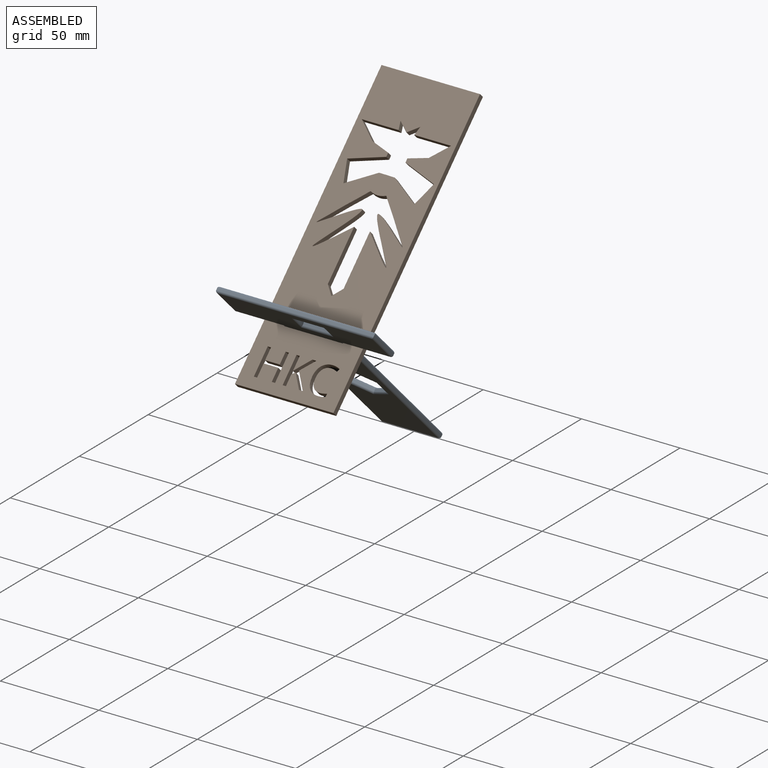
[diagram: assembled view]
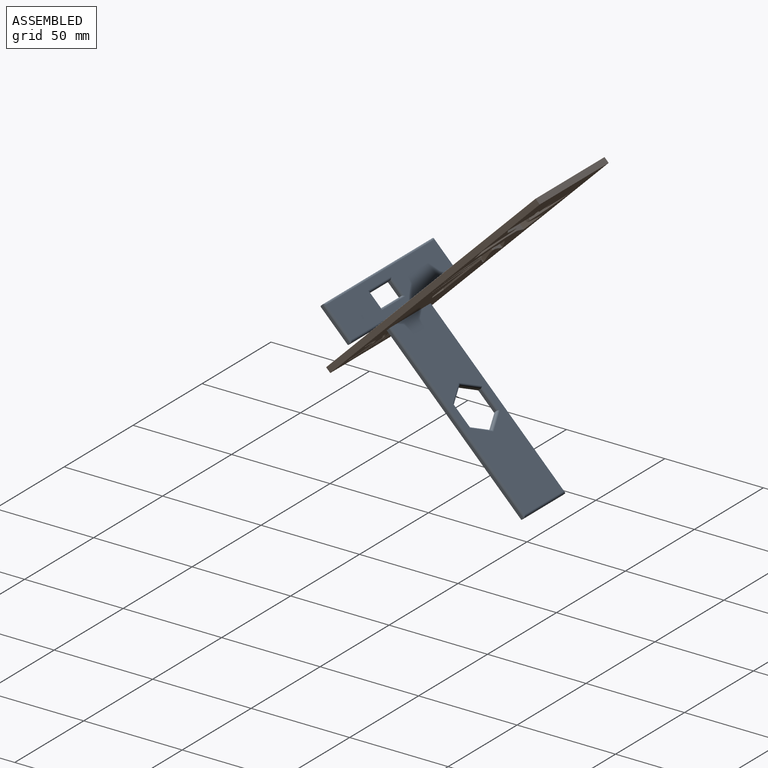
[diagram: assembled view, second angle]
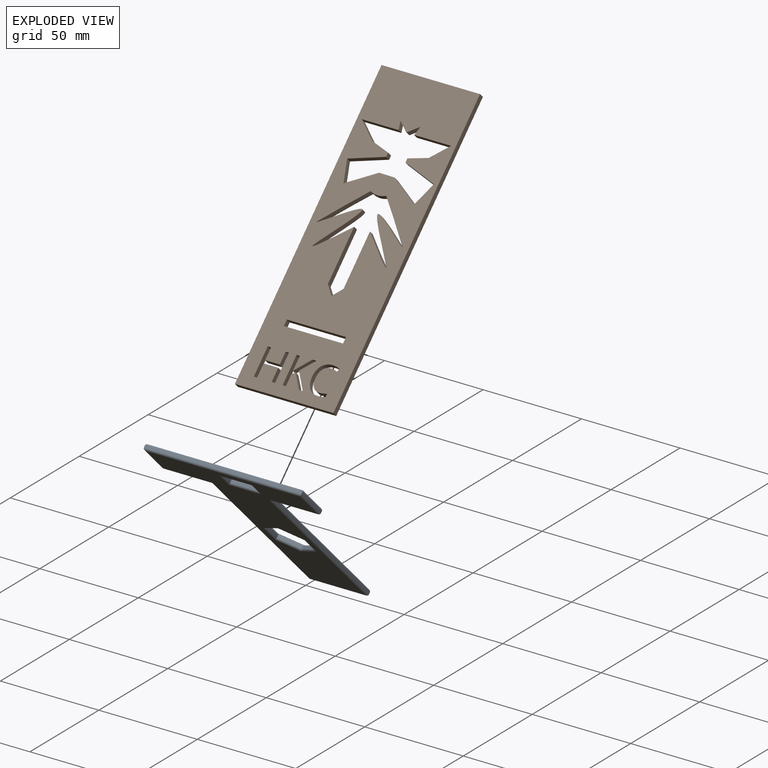
[diagram: exploded view]
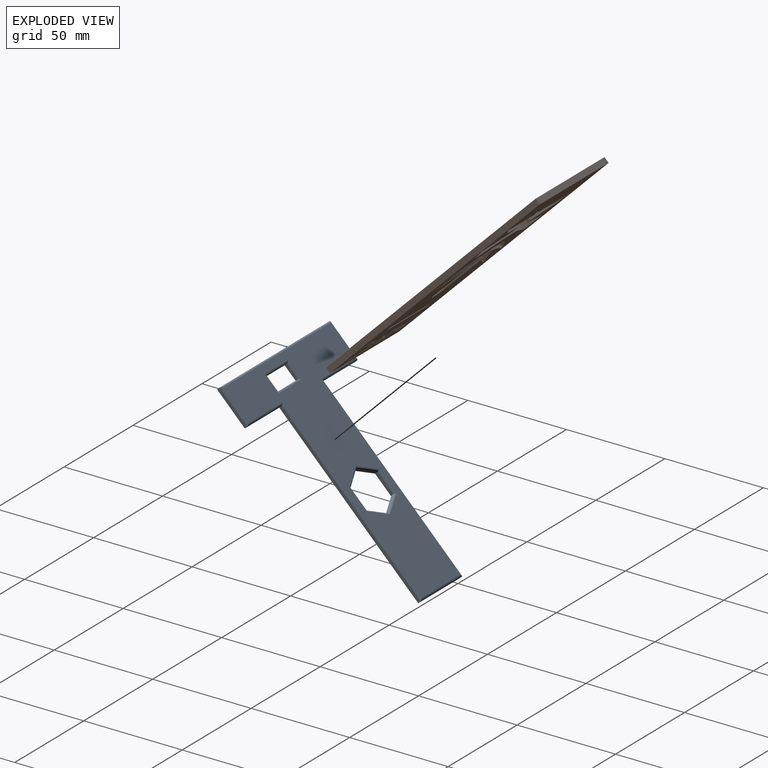
[diagram: exploded view, second angle]
ASSEMBLY  parts=2 mates=5
PART A: 56 faces, bbox 80x120x3 mm
  f0: plane 9.83x5.67mm, normal (0.5,-0.87,0), area 11.3mm2, adj f1,f17,f22,f40
  f1: plane 9.83x5.67mm, normal (-0.5,-0.87,0), area 11.3mm2, adj f0,f2,f20,f38
  f2: plane 11.35x1mm, normal (-1,0,0), area 11.3mm2, adj f1,f3,f21,f39
  f3: plane 9.83x5.67mm, normal (-0.5,0.87,0), area 11.3mm2, adj f2,f4,f23,f41
  f4: plane 9.83x5.67mm, normal (0.5,0.87,0), area 11.3mm2, adj f3,f17,f25,f43
  f5: plane 8x1mm, normal (1,0,0), area 8mm2, adj f6,f15,f27,f45
  f6: plane 15x1mm, normal (0,-1,0), area 15mm2, adj f5,f7,f26,f44
  f7: plane 8x1mm, normal (-1,0,0), area 8mm2, adj f6,f15,f28,f46
  f8: plane 100x1mm, normal (-1,0,0), area 100mm2, adj f9,f16,f35,f53
  f9: plane 25x1mm, normal (0,1,0), area 25mm2, adj f8,f10,f33,f51
  f10: plane 20x1mm, normal (-1,0,0), area 20mm2, adj f9,f11,f31,f49
  f11: plane 80x1mm, normal (0,-1,0), area 80mm2, adj f10,f12,f30,f48
  f12: plane 20x1mm, normal (1,0,0), area 20mm2, adj f11,f13,f32,f50
  f13: plane 25x1mm, normal (0,1,0), area 25mm2, adj f12,f14,f34,f52
  f14: plane 100x1mm, normal (1,0,0), area 100mm2, adj f13,f16,f36,f54
  f15: plane 15x1mm, normal (0,1,0), area 15mm2, adj f5,f7,f29,f47
  f16: plane 30x1mm, normal (0,1,0), area 30mm2, adj f8,f14,f37,f55
  f17: plane 11.35x1mm, normal (1,0,0), area 11.3mm2, adj f0,f4,f24,f42
  f18: plane 118x78mm, normal (0,0,1), area 3628mm2, adj f38,f39,f40,f41,f42,f43,f44,f45
  f19: plane 118x78mm, normal (0,0,-1), area 3628mm2, adj f20,f21,f22,f23,f24,f25,f26,f27
  f20: cylinder r=1mm len=11.33mm, axis (0.87,-0.5,0), area 18.5mm2, adj f1,f19,f21,f22
  f21: cylinder r=1mm len=12.5mm, axis (0,-1,0), area 18.5mm2, adj f2,f19,f20,f23
  f22: cylinder r=1mm len=11.33mm, axis (0.87,0.5,0), area 18.5mm2, adj f0,f19,f20,f24
  f23: cylinder r=1mm len=11.33mm, axis (-0.87,-0.5,0), area 18.5mm2, adj f3,f19,f21,f25
  f24: cylinder r=1mm len=12.5mm, axis (0,1,0), area 18.5mm2, adj f17,f19,f22,f25
  f25: cylinder r=1mm len=11.33mm, axis (-0.87,0.5,0), area 18.5mm2, adj f4,f19,f23,f24
  f26: cylinder r=1mm len=17mm, axis (1,0,0), area 24.7mm2, adj f6,f19,f27,f28
  f27: cylinder r=1mm len=10mm, axis (0,1,0), area 13.7mm2, adj f5,f19,f26,f29
  f28: cylinder r=1mm len=10mm, axis (0,-1,0), area 13.7mm2, adj f7,f19,f26,f29
  f29: cylinder r=1mm len=17mm, axis (-1,0,0), area 24.7mm2, adj f15,f19,f27,f28
  f30: cylinder r=1mm len=80mm, axis (1,0,0), area 124.5mm2, adj f11,f19,f31,f32
  f31: cylinder r=1mm len=20mm, axis (0,-1,0), area 30.3mm2, adj f10,f19,f30,f33
  f32: cylinder r=1mm len=20mm, axis (0,1,0), area 30.3mm2, adj f12,f19,f30,f34
  f33: cylinder r=1mm len=26mm, axis (-1,0,0), area 39.3mm2, adj f9,f19,f31,f35
  f34: cylinder r=1mm len=26mm, axis (-1,0,0), area 39.3mm2, adj f13,f19,f32,f36
  f35: cylinder r=1mm len=101mm, axis (0,-1,0), area 157.1mm2, adj f8,f19,f33,f37
  f36: cylinder r=1mm len=101mm, axis (0,1,0), area 157.1mm2, adj f14,f19,f34,f37
  f37: cylinder r=1mm len=30mm, axis (-1,0,0), area 46mm2, adj f16,f19,f35,f36
  f38: cylinder r=1mm len=11.33mm, axis (-0.87,0.5,0), area 18.5mm2, adj f1,f18,f39,f40
  f39: cylinder r=1mm len=12.5mm, axis (0,1,0), area 18.5mm2, adj f2,f18,f38,f41
  f40: cylinder r=1mm len=11.33mm, axis (-0.87,-0.5,0), area 18.5mm2, adj f0,f18,f38,f42
  f41: cylinder r=1mm len=11.33mm, axis (0.87,0.5,0), area 18.5mm2, adj f3,f18,f39,f43
  f42: cylinder r=1mm len=12.5mm, axis (0,-1,0), area 18.5mm2, adj f17,f18,f40,f43
  f43: cylinder r=1mm len=11.33mm, axis (0.87,-0.5,0), area 18.5mm2, adj f4,f18,f41,f42
  f44: cylinder r=1mm len=17mm, axis (-1,0,0), area 24.7mm2, adj f6,f18,f45,f46
  f45: cylinder r=1mm len=10mm, axis (0,-1,0), area 13.7mm2, adj f5,f18,f44,f47
  f46: cylinder r=1mm len=10mm, axis (0,1,0), area 13.7mm2, adj f7,f18,f44,f47
  f47: cylinder r=1mm len=17mm, axis (1,0,0), area 24.7mm2, adj f15,f18,f45,f46
  f48: cylinder r=1mm len=80mm, axis (-1,0,0), area 124.5mm2, adj f11,f18,f49,f50
  f49: cylinder r=1mm len=20mm, axis (0,1,0), area 30.3mm2, adj f10,f18,f48,f51
  f50: cylinder r=1mm len=20mm, axis (0,-1,0), area 30.3mm2, adj f12,f18,f48,f52
  f51: cylinder r=1mm len=26mm, axis (1,0,0), area 39.3mm2, adj f9,f18,f49,f53
  f52: cylinder r=1mm len=26mm, axis (1,0,0), area 39.3mm2, adj f13,f18,f50,f54
  f53: cylinder r=1mm len=101mm, axis (0,1,0), area 157.1mm2, adj f8,f18,f51,f55
  f54: cylinder r=1mm len=101mm, axis (0,-1,0), area 157.1mm2, adj f14,f18,f52,f55
  f55: cylinder r=1mm len=30mm, axis (1,0,0), area 46mm2, adj f16,f18,f53,f54
PART B: 150 faces, bbox 50x150x3 mm
  f0: plane 50x2.9mm, normal (0,1,0), area 145mm2, adj f1,f73,f75,f76
  f1: plane 150x2.9mm, normal (-1,0,0), area 435mm2, adj f0,f2,f75,f77
  f2: plane 50x2.9mm, normal (0,-1,0), area 145mm2, adj f1,f73,f75,f79
  f3: plane 3x2.9mm, normal (-1,0,0), area 8.7mm2, adj f4,f67,f75,f81
  f4: plane 30x2.9mm, normal (0,1,0), area 87mm2, adj f3,f5,f75,f80
  f5: plane 3x2.9mm, normal (1,0,0), area 8.7mm2, adj f4,f67,f75,f82
  f6: extruded ~3.22x2.9mm, area 9.7mm2, adj f7,f68,f75,f97
  f7: extruded ~3.68x2.9mm, area 12mm2, adj f6,f8,f75,f95
  f8: extruded ~4.26x2.9mm, area 13.2mm2, adj f7,f9,f75,f93
  f9: extruded ~4.29x2.9mm, area 13.3mm2, adj f8,f10,f75,f91
  f10: extruded ~3.71x2.9mm, area 12mm2, adj f9,f11,f75,f89
  f11: extruded ~3.38x2.9mm, area 10mm2, adj f10,f12,f75,f87
  f12: plane 2.9x1.44mm, normal (-1,0,0), area 4.2mm2, adj f11,f13,f75,f85
  f13: extruded ~3.63x2.9mm, area 10.7mm2, adj f12,f14,f75,f84
  f14: extruded ~4.83x2.9mm, area 15.5mm2, adj f13,f15,f75,f86
  f15: extruded ~5.39x2.9mm, area 16.8mm2, adj f14,f16,f75,f88
  f16: extruded ~3.83x2.9mm, area 11.5mm2, adj f15,f17,f75,f90
  f17: extruded ~2.9x2.54mm, area 10.2mm2, adj f16,f18,f75,f92
  f18: extruded ~3.64x2.9mm, area 11mm2, adj f17,f19,f75,f94
  f19: extruded ~3.89x2.9mm, area 11.6mm2, adj f18,f68,f75,f96
  f20: plane 8.01x5.9mm, normal (-0.8,-0.59,0), area 28.8mm2, adj f21,f69,f75,f109
  f21: plane 2.9x1.94mm, normal (0,1,0), area 5.6mm2, adj f20,f22,f75,f107
  f22: plane 6.87x5.16mm, normal (0.8,0.6,0), area 24.9mm2, adj f21,f23,f75,f105
  f23: plane 2.9x1.48mm, normal (-0.66,0.75,0), area 5.8mm2, adj f22,f24,f75,f103
  f24: plane 5.55x2.9mm, normal (-1,0,0), area 16.1mm2, adj f23,f25,f75,f101
  f25: plane 2.9x1.65mm, normal (0,1,0), area 4.8mm2, adj f24,f26,f75,f99
  f26: plane 14.15x2.9mm, normal (1,0,0), area 41mm2, adj f25,f27,f75,f100
  f27: plane 2.9x1.65mm, normal (0,-1,0), area 4.8mm2, adj f26,f28,f75,f102
  f28: plane 7.02x2.9mm, normal (-1,0,0), area 20.4mm2, adj f27,f29,f75,f104
  f29: plane 7.02x6.42mm, normal (0.74,-0.67,0), area 27.6mm2, adj f28,f30,f75,f106
  f30: plane 2.9x1.95mm, normal (0,-1,0), area 5.6mm2, adj f29,f69,f75,f108
  f31: plane 14.15x2.9mm, normal (-1,0,0), area 41mm2, adj f32,f70,f75,f121
  f32: plane 2.9x1.65mm, normal (0,1,0), area 4.8mm2, adj f31,f33,f75,f119
  f33: plane 6.66x2.9mm, normal (1,0,0), area 19.3mm2, adj f32,f34,f75,f117
  f34: plane 7.46x2.9mm, normal (0,1,0), area 21.6mm2, adj f33,f35,f75,f115
  f35: plane 6.66x2.9mm, normal (-1,0,0), area 19.3mm2, adj f34,f36,f75,f113
  f36: plane 2.9x1.65mm, normal (0,1,0), area 4.8mm2, adj f35,f37,f75,f111
  f37: plane 14.15x2.9mm, normal (1,0,0), area 41mm2, adj f36,f38,f75,f112
  f38: plane 2.9x1.65mm, normal (0,-1,0), area 4.8mm2, adj f37,f39,f75,f114
  f39: plane 6.02x2.9mm, normal (-1,0,0), area 17.5mm2, adj f38,f40,f75,f116
  f40: plane 7.46x2.9mm, normal (0,-1,0), area 21.6mm2, adj f39,f41,f75,f118
  f41: plane 6.02x2.9mm, normal (1,0,0), area 17.5mm2, adj f40,f70,f75,f120
  f42: extruded ~29.78x17.86mm, area 268.8mm2, adj f43,f71,f75,f127
  f43: cylinder r=9.6mm len=8mm, axis (0,0,-1), area 23.9mm2, adj f42,f44,f75,f125
  f44: extruded ~29.78x17.86mm, area 268.8mm2, adj f43,f45,f75,f123
  f45: plane 26.92x2.9mm, normal (-1,0,0), area 78.1mm2, adj f44,f46,f75,f124
  f46: plane 4.49x4mm, normal (-0.75,0.67,0), area 17.4mm2, adj f45,f47,f75,f126
  f47: plane 4.49x4mm, normal (0.75,0.67,0), area 17.4mm2, adj f46,f71,f75,f128
  f48: plane 18.65x2.9mm, normal (0,-1,0), area 54.1mm2, adj f49,f72,f75,f148
  f49: plane 7.71x7.47mm, normal (-0.72,0.7,0), area 31.1mm2, adj f48,f50,f75,f146
  f50: plane 9.46x2.9mm, normal (-0.28,0.96,0), area 28.6mm2, adj f49,f51,f75,f144
  f51: plane 2.9x2mm, normal (-1,0,0), area 5.8mm2, adj f50,f52,f75,f142
  f52: plane 17.14x5.5mm, normal (-0.31,-0.95,0), area 52.2mm2, adj f51,f53,f75,f140
  f53: plane 10.63x4.59mm, normal (-0.92,0.4,0), area 33.6mm2, adj f52,f54,f75,f138
  f54: plane 14.27x8.64mm, normal (0.52,0.86,0), area 48.4mm2, adj f53,f55,f75,f136
  f55: plane 4x2.9mm, normal (0.02,1,0), area 11.6mm2, adj f54,f56,f75,f134
  f56: plane 4x2.9mm, normal (0,1,0), area 11.6mm2, adj f55,f57,f75,f132
  f57: plane 13.73x8.73mm, normal (-0.54,0.84,0), area 47.2mm2, adj f56,f58,f75,f130
  f58: plane 10.64x3.41mm, normal (0.95,0.31,0), area 32.4mm2, adj f57,f59,f75,f131
  f59: plane 17.14x5.5mm, normal (0.31,-0.95,0), area 52.2mm2, adj f58,f60,f75,f133
  f60: plane 2.9x2mm, normal (1,0,0), area 5.8mm2, adj f59,f61,f75,f135
  f61: plane 9.46x2.9mm, normal (0.29,0.96,0), area 28.7mm2, adj f60,f62,f75,f137
  f62: plane 9.19x7.71mm, normal (0.64,0.77,0), area 34.8mm2, adj f61,f63,f75,f139
  f63: plane 18.65x2.9mm, normal (0,-1,0), area 54.1mm2, adj f62,f64,f75,f141
  f64: plane 4.01x2.9mm, normal (0.97,0.24,0), area 12mm2, adj f63,f65,f75,f143
  f65: plane 5x4.01mm, normal (-0.63,-0.78,0), area 18.6mm2, adj f64,f66,f75,f145
  f66: plane 5x3.91mm, normal (0.62,-0.79,0), area 18.4mm2, adj f65,f72,f75,f147
  f67: plane 30x2.9mm, normal (0,-1,0), area 87mm2, adj f3,f5,f75,f83
  f68: plane 2.9x1.41mm, normal (-0.9,0.44,0), area 4.6mm2, adj f6,f19,f75,f98
  f69: plane 6.15x5.69mm, normal (-0.73,0.68,0), area 24.3mm2, adj f20,f30,f75,f110
  f70: plane 2.9x1.65mm, normal (0,-1,0), area 4.8mm2, adj f31,f41,f75,f122
  f71: plane 26.92x2.9mm, normal (1,0,0), area 78.1mm2, adj f42,f47,f75,f129
  f72: plane 4.01x2.9mm, normal (-0.97,0.24,0), area 12mm2, adj f48,f66,f75,f149
  f73: plane 150x2.9mm, normal (1,0,0), area 435mm2, adj f0,f2,f75,f78
  f74: plane 149.8x49.8mm, normal (0,0,1), area 5702.4mm2, adj f76,f77,f78,f79,f80,f81,f82,f83
  f75: plane 150x50mm, normal (0,0,-1), area 5883.1mm2, adj f0,f1,f2,f3,f4,f5,f6,f7
  f76: cylinder r=0.1mm len=50mm, axis (1,0,0), area 7.8mm2, adj f0,f74,f77,f78
  f77: cylinder r=0.1mm len=150mm, axis (0,1,0), area 23.5mm2, adj f1,f74,f76,f79
  f78: cylinder r=0.1mm len=150mm, axis (0,-1,0), area 23.5mm2, adj f73,f74,f76,f79
  f79: cylinder r=0.1mm len=50mm, axis (-1,0,0), area 7.8mm2, adj f2,f74,f77,f78
  f80: cylinder r=0.1mm len=30.2mm, axis (1,0,0), area 4.7mm2, adj f4,f74,f81,f82
  f81: cylinder r=0.1mm len=3.2mm, axis (0,1,0), area 0.5mm2, adj f3,f74,f80,f83
  f82: cylinder r=0.1mm len=3.2mm, axis (0,-1,0), area 0.5mm2, adj f5,f74,f80,f83
  f83: cylinder r=0.1mm len=30.2mm, axis (-1,0,0), area 4.7mm2, adj f67,f74,f81,f82
  f84: bspline ~4.75x0.72mm, area 0.6mm2, adj f13,f74,f85,f86
  f85: cylinder r=0.1mm len=1.64mm, axis (0,1,0), area 0.2mm2, adj f12,f74,f84,f87
  f86: bspline ~7.46x2.72mm, area 0.8mm2, adj f14,f74,f84,f88
  f87: bspline ~4.76x0.78mm, area 0.5mm2, adj f11,f74,f85,f89
  f88: bspline ~7.52x2.59mm, area 0.9mm2, adj f15,f74,f86,f90
  f89: bspline ~4.54x2.13mm, area 0.6mm2, adj f10,f74,f87,f91
  f90: bspline ~5.28x1.25mm, area 0.6mm2, adj f16,f74,f88,f92
  f91: bspline ~5.95x1.99mm, area 0.7mm2, adj f9,f74,f89,f93
  f92: bspline ~3.49x3.27mm, area 0.6mm2, adj f17,f74,f90,f94
  f93: bspline ~5.86x2.03mm, area 0.7mm2, adj f8,f74,f91,f95
  f94: bspline ~5x1.34mm, area 0.6mm2, adj f18,f74,f92,f96
  f95: bspline ~5.59x2.16mm, area 0.6mm2, adj f7,f74,f93,f97
  f96: bspline ~5.11x1.03mm, area 0.6mm2, adj f19,f74,f94,f98
  f97: bspline ~4.8x1.23mm, area 0.5mm2, adj f6,f74,f95,f98
  f98: cylinder r=0.1mm len=1.64mm, axis (0.44,0.9,0), area 0.3mm2, adj f68,f74,f96,f97
  f99: cylinder r=0.1mm len=1.85mm, axis (1,0,0), area 0.3mm2, adj f25,f74,f100,f101
  f100: cylinder r=0.1mm len=14.35mm, axis (0,-1,0), area 2.2mm2, adj f26,f74,f99,f102
  f101: cylinder r=0.1mm len=5.65mm, axis (0,1,0), area 0.9mm2, adj f24,f74,f99,f103
  f102: cylinder r=0.1mm len=1.85mm, axis (-1,0,0), area 0.3mm2, adj f27,f74,f100,f104
  f103: cylinder r=0.1mm len=1.55mm, axis (0.75,0.66,0), area 0.3mm2, adj f23,f74,f101,f105
  f104: cylinder r=0.1mm len=7.12mm, axis (0,1,0), area 1.1mm2, adj f28,f74,f102,f106
  f105: cylinder r=0.1mm len=6.97mm, axis (0.6,-0.8,0), area 1.3mm2, adj f22,f74,f103,f107
  f106: cylinder r=0.1mm len=7.12mm, axis (-0.67,-0.74,0), area 1.5mm2, adj f29,f74,f104,f108
  f107: cylinder r=0.1mm len=2.18mm, axis (1,0,0), area 0.3mm2, adj f21,f74,f105,f109
  f108: cylinder r=0.1mm len=2.22mm, axis (-1,0,0), area 0.3mm2, adj f30,f74,f106,f110
  f109: cylinder r=0.1mm len=8.22mm, axis (-0.59,0.8,0), area 1.6mm2, adj f20,f74,f107,f110
  f110: cylinder r=0.1mm len=6.39mm, axis (0.68,0.73,0), area 1.3mm2, adj f69,f74,f108,f109
  f111: cylinder r=0.1mm len=1.85mm, axis (1,0,0), area 0.3mm2, adj f36,f74,f112,f113
  f112: cylinder r=0.1mm len=14.35mm, axis (0,-1,0), area 2.2mm2, adj f37,f74,f111,f114
  f113: cylinder r=0.1mm len=6.76mm, axis (0,1,0), area 1mm2, adj f35,f74,f111,f115
  f114: cylinder r=0.1mm len=1.85mm, axis (-1,0,0), area 0.3mm2, adj f38,f74,f112,f116
  f115: cylinder r=0.1mm len=7.46mm, axis (1,0,0), area 1.2mm2, adj f34,f74,f113,f117
  f116: cylinder r=0.1mm len=6.12mm, axis (0,1,0), area 0.9mm2, adj f39,f74,f114,f118
  f117: cylinder r=0.1mm len=6.76mm, axis (0,-1,0), area 1mm2, adj f33,f74,f115,f119
  f118: cylinder r=0.1mm len=7.46mm, axis (-1,0,0), area 1.2mm2, adj f40,f74,f116,f120
  f119: cylinder r=0.1mm len=1.85mm, axis (1,0,0), area 0.3mm2, adj f32,f74,f117,f121
  f120: cylinder r=0.1mm len=6.12mm, axis (0,-1,0), area 0.9mm2, adj f41,f74,f118,f122
  f121: cylinder r=0.1mm len=14.35mm, axis (0,1,0), area 2.2mm2, adj f31,f74,f119,f122
  f122: cylinder r=0.1mm len=1.85mm, axis (-1,0,0), area 0.3mm2, adj f70,f74,f120,f121
  f123: bspline ~30.56x21.24mm, area 14.6mm2, adj f44,f74,f124,f125
  f124: cylinder r=0.1mm len=26.96mm, axis (0,1,0), area 4.2mm2, adj f45,f74,f123,f126
  f125: torus R=9.5mm, axis (0,0,1), area 1.3mm2, adj f43,f74,f123,f127
  f126: cylinder r=0.1mm len=4.67mm, axis (0.67,0.75,0), area 1mm2, adj f46,f74,f124,f128
  f127: bspline ~30.56x21.24mm, area 14.6mm2, adj f42,f74,f125,f129
  f128: cylinder r=0.1mm len=4.67mm, axis (0.67,-0.75,0), area 1mm2, adj f47,f74,f126,f129
  f129: cylinder r=0.1mm len=26.96mm, axis (0,-1,0), area 4.2mm2, adj f71,f74,f127,f128
  f130: cylinder r=0.1mm len=13.89mm, axis (0.84,0.54,0), area 2.6mm2, adj f57,f74,f131,f132
  f131: cylinder r=0.1mm len=10.89mm, axis (0.31,-0.95,0), area 1.8mm2, adj f58,f74,f130,f133
  f132: cylinder r=0.1mm len=4mm, axis (1,0,0), area 0.6mm2, adj f56,f74,f130,f134
  f133: cylinder r=0.1mm len=17.27mm, axis (-0.95,-0.31,0), area 2.8mm2, adj f59,f74,f131,f135
  f134: cylinder r=0.1mm len=4mm, axis (1,-0.02,0), area 0.6mm2, adj f55,f74,f132,f136
  f135: cylinder r=0.1mm len=2mm, axis (0,-1,0), area 0.3mm2, adj f60,f74,f133,f137
  f136: cylinder r=0.1mm len=14.42mm, axis (0.86,-0.52,0), area 2.6mm2, adj f54,f74,f134,f138
  f137: cylinder r=0.1mm len=9.5mm, axis (0.96,-0.29,0), area 1.5mm2, adj f61,f74,f135,f139
  f138: cylinder r=0.1mm len=10.87mm, axis (0.4,0.92,0), area 1.8mm2, adj f53,f74,f136,f140
  f139: cylinder r=0.1mm len=9.48mm, axis (0.77,-0.64,0), area 1.9mm2, adj f62,f74,f137,f141
  f140: cylinder r=0.1mm len=17.27mm, axis (-0.95,0.31,0), area 2.8mm2, adj f52,f74,f138,f142
  f141: cylinder r=0.1mm len=18.92mm, axis (-1,0,0), area 2.9mm2, adj f63,f74,f139,f143
  f142: cylinder r=0.1mm len=2mm, axis (0,1,0), area 0.3mm2, adj f51,f74,f140,f144
  f143: cylinder r=0.1mm len=4.32mm, axis (0.24,-0.97,0), area 0.7mm2, adj f64,f74,f141,f145
  f144: cylinder r=0.1mm len=9.51mm, axis (0.96,0.28,0), area 1.5mm2, adj f50,f74,f142,f146
  f145: cylinder r=0.1mm len=5.29mm, axis (-0.78,0.63,0), area 1mm2, adj f65,f74,f143,f147
  f146: cylinder r=0.1mm len=7.97mm, axis (0.7,0.72,0), area 1.7mm2, adj f49,f74,f144,f148
  f147: cylinder r=0.1mm len=5.29mm, axis (-0.79,-0.62,0), area 1mm2, adj f66,f74,f145,f149
  f148: cylinder r=0.1mm len=18.88mm, axis (-1,0,0), area 2.9mm2, adj f48,f74,f146,f149
  f149: cylinder r=0.1mm len=4.31mm, axis (0.24,0.97,0), area 0.7mm2, adj f72,f74,f147,f148
PLACE A rot(axis=(-1,0,0),45.1deg) t=(-84.12,-81.8,-9.03)mm
PLACE B rot(axis=(1,0,0),44.9deg) t=(-84.12,-83.05,56.03)mm fixed
MATE parallel B.f3 <-> A.f14  axis (-1,0,0) through (-69.12,-114.91,26.38)mm
MATE parallel A.f9 <-> B.f74  axis (0,0.71,-0.71) through (-111.62,-116,27.48)mm
MATE planar A.f14 <-> B.f3  axis (1,0,0) through (-69.12,-80.74,-7.97)mm
MATE parallel A.f14 <-> B.f3  axis (1,0,0) through (-69.12,-80.74,-7.97)mm
MATE planar A.f18 <-> B.f67  axis (0,0.71,0.71) through (-84.33,-94.61,8.1)mm
